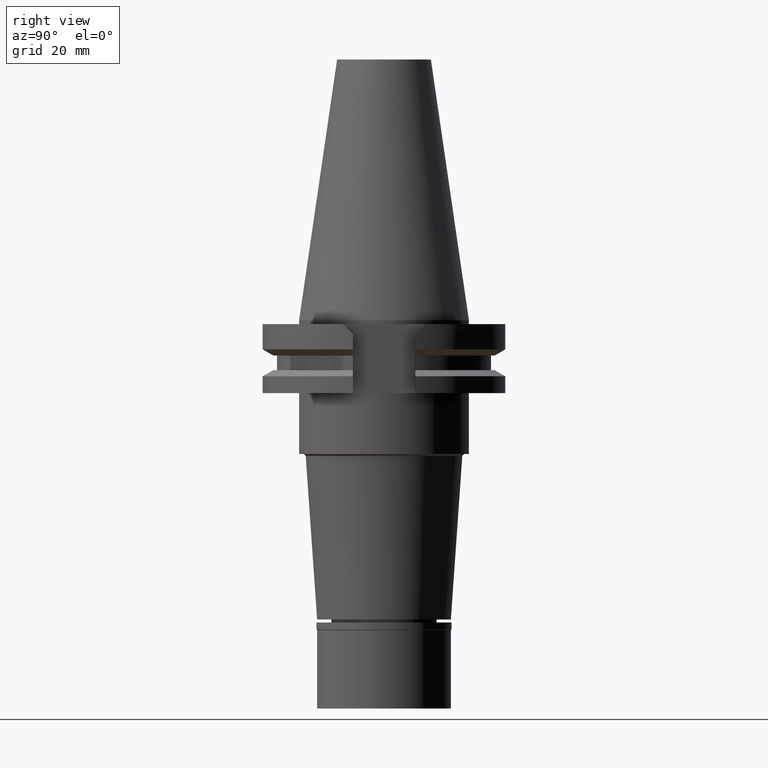
[diagram: clean part render]
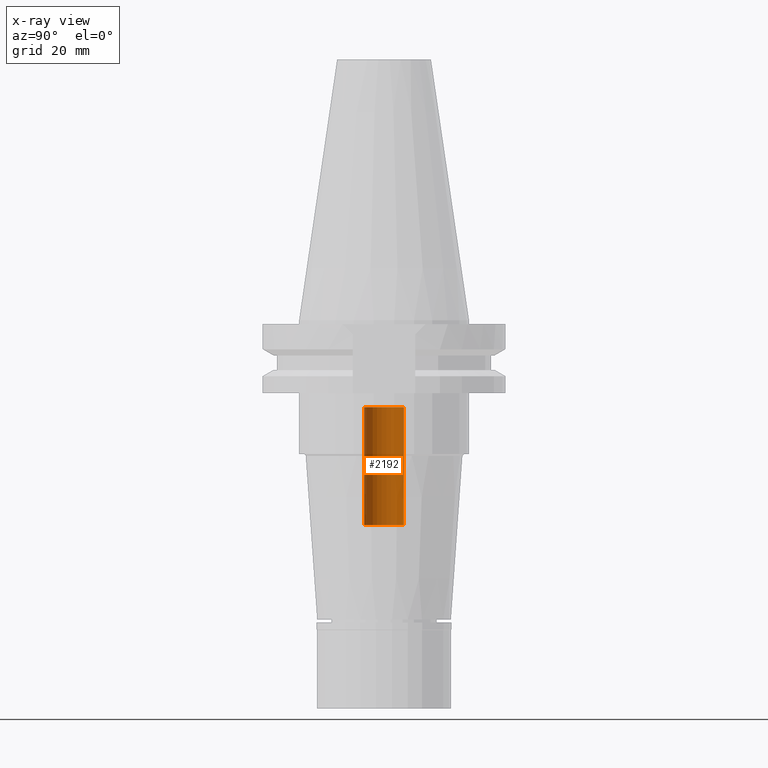
[diagram: x-ray — body ghosted, one internal face saturated and labeled with its STEP entity id]
A machine part, right view, then the same camera in x-ray: the body is ghosted and one INTERNAL B-rep face — a face not visible from any outside direction — is saturated and labeled: STEP entity #2192.
In plain terms, the highlighted cylindrical surface (edge-blend (fillet) strip) has radius 5.2 mm, axis along (0, 0, -1).
Its self-contained STEP definition (entity closure, byte-faithful):
#13 = VERTEX_POINT ( 'NONE', #2669 ) ;
#72 = EDGE_CURVE ( 'NONE', #342, #13, #77, .T. ) ;
#77 = LINE ( 'NONE', #351, #256 ) ;
#78 = FACE_OUTER_BOUND ( 'NONE', #2806, .T. ) ;
#83 = DIRECTION ( 'NONE',  ( 0.0000000000000000000, 0.0000000000000000000, 1.000000000000000000 ) ) ;
#135 = EDGE_CURVE ( 'NONE', #792, #342, #1279, .T. ) ;
#256 = VECTOR ( 'NONE', #2987, 1000.000000000000000 ) ;
#342 = VERTEX_POINT ( 'NONE', #2814 ) ;
#351 = CARTESIAN_POINT ( 'NONE',  ( 0.0000000000000000000, 5.200000000000000178, -53.60000000000000142 ) ) ;
#445 = EDGE_CURVE ( 'NONE', #13, #3284, #1944, .T. ) ;
#521 = CARTESIAN_POINT ( 'NONE',  ( 0.0000000000000000000, -5.200000000000000178, -53.60000000000000142 ) ) ;
#597 = CYLINDRICAL_SURFACE ( 'NONE', #1928, 5.200000000000000178 ) ;
#737 = ORIENTED_EDGE ( 'NONE', *, *, #72, .T. ) ;
#749 = ORIENTED_EDGE ( 'NONE', *, *, #2787, .F. ) ;
#792 = VERTEX_POINT ( 'NONE', #521 ) ;
#1127 = DIRECTION ( 'NONE',  ( 0.0000000000000000000, -1.000000000000000000, 0.0000000000000000000 ) ) ;
#1170 = DIRECTION ( 'NONE',  ( 0.0000000000000000000, 0.0000000000000000000, 1.000000000000000000 ) ) ;
#1181 = ORIENTED_EDGE ( 'NONE', *, *, #135, .T. ) ;
#1279 = CIRCLE ( 'NONE', #1886, 5.200000000000000178 ) ;
#1327 = CARTESIAN_POINT ( 'NONE',  ( 0.0000000000000000000, -5.200000000000000178, -22.75000000000000000 ) ) ;
#1366 = CARTESIAN_POINT ( 'NONE',  ( 0.0000000000000000000, -5.200000000000000178, -53.60000000000000142 ) ) ;
#1382 = VECTOR ( 'NONE', #83, 1000.000000000000000 ) ;
#1415 = DIRECTION ( 'NONE',  ( 0.0000000000000000000, -1.000000000000000000, 0.0000000000000000000 ) ) ;
#1632 = CARTESIAN_POINT ( 'NONE',  ( 0.0000000000000000000, 2.160368802205999604E-14, 76.40749999999999886 ) ) ;
#1671 = CARTESIAN_POINT ( 'NONE',  ( 0.0000000000000000000, 2.160368802205999604E-14, -53.60000000000000142 ) ) ;
#1886 = AXIS2_PLACEMENT_3D ( 'NONE', #1671, #2704, #1415 ) ;
#1904 = DIRECTION ( 'NONE',  ( 0.0000000000000000000, 1.000000000000000000, 0.0000000000000000000 ) ) ;
#1928 = AXIS2_PLACEMENT_3D ( 'NONE', #1632, #2422, #1127 ) ;
#1944 = CIRCLE ( 'NONE', #2919, 5.200000000000000178 ) ;
#2192 = ADVANCED_FACE ( 'NONE', ( #78 ), #597, .F. ) ;
#2422 = DIRECTION ( 'NONE',  ( 0.0000000000000000000, 0.0000000000000000000, -1.000000000000000000 ) ) ;
#2662 = LINE ( 'NONE', #1366, #1382 ) ;
#2669 = CARTESIAN_POINT ( 'NONE',  ( 0.0000000000000000000, 5.200000000000000178, -22.75000000000000000 ) ) ;
#2682 = CARTESIAN_POINT ( 'NONE',  ( 0.0000000000000000000, 2.160368802205999604E-14, -22.75000000000000000 ) ) ;
#2704 = DIRECTION ( 'NONE',  ( 0.0000000000000000000, 0.0000000000000000000, -1.000000000000000000 ) ) ;
#2787 = EDGE_CURVE ( 'NONE', #792, #3284, #2662, .T. ) ;
#2806 = EDGE_LOOP ( 'NONE', ( #3370, #749, #1181, #737 ) ) ;
#2814 = CARTESIAN_POINT ( 'NONE',  ( 0.0000000000000000000, 5.200000000000000178, -53.60000000000000142 ) ) ;
#2919 = AXIS2_PLACEMENT_3D ( 'NONE', #2682, #1170, #1904 ) ;
#2987 = DIRECTION ( 'NONE',  ( 0.0000000000000000000, 0.0000000000000000000, 1.000000000000000000 ) ) ;
#3284 = VERTEX_POINT ( 'NONE', #1327 ) ;
#3370 = ORIENTED_EDGE ( 'NONE', *, *, #445, .T. ) ;